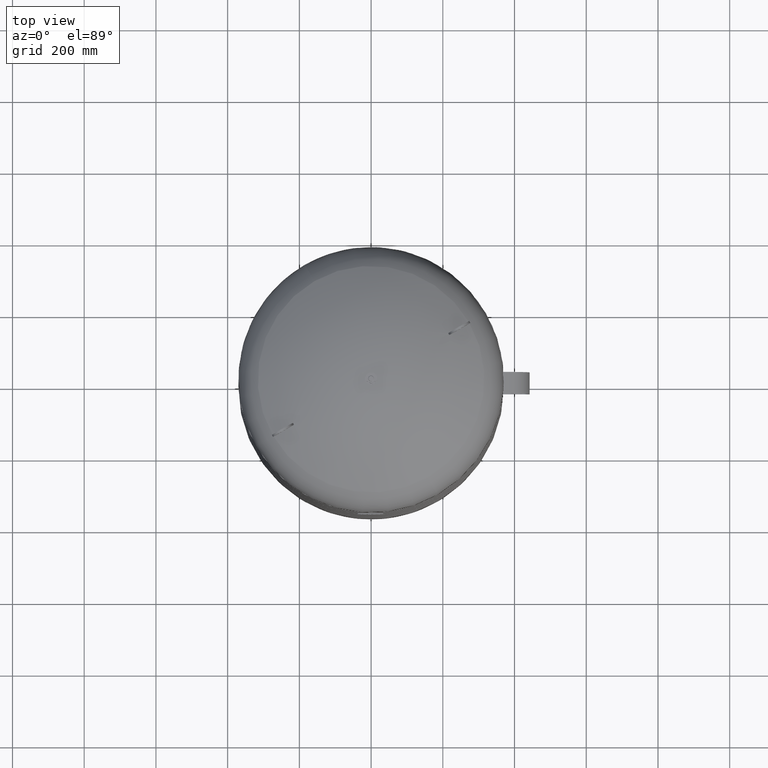
[diagram: clean part render]
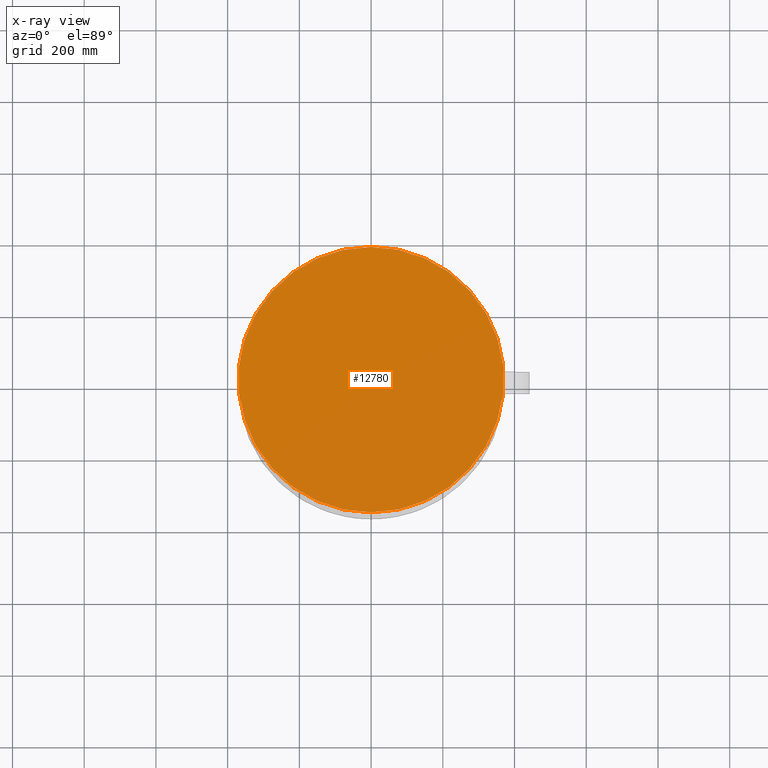
[diagram: x-ray — body ghosted, one internal face saturated and labeled with its STEP entity id]
A machine part, top view, then the same camera in x-ray: the body is ghosted and one INTERNAL B-rep face — a face not visible from any outside direction — is saturated and labeled: STEP entity #12780.
In plain terms, the highlighted planar face has unit normal (0, 0, -1).
Its self-contained STEP definition (entity closure, byte-faithful):
#12048=CARTESIAN_POINT('',(320.429399400242350,184.999999999999970,1500.0));
#12049=VERTEX_POINT('',#12048);
#12058=CARTESIAN_POINT('',(-320.429399400242350,-184.999999999999970,1500.0));
#12059=VERTEX_POINT('',#12058);
#12060=CARTESIAN_POINT('',(-2.685504E-015,-4.164022E-014,1500.0));
#12061=DIRECTION('',(-1.060575E-016,-6.123234E-017,-1.000000000000000));
#12062=DIRECTION('',(0.866025403784439,0.500000000000000,-1.224647E-016));
#12063=AXIS2_PLACEMENT_3D('',#12060,#12061,#12062);
#12064=CIRCLE('',#12063,370.0);
#12065=EDGE_CURVE('',#12059,#12049,#12064,.T.);
#12761=CARTESIAN_POINT('',(-2.685504E-015,-4.164022E-014,1500.0));
#12762=DIRECTION('',(-1.060575E-016,-6.123234E-017,-1.000000000000000));
#12763=DIRECTION('',(0.866025403784439,0.500000000000000,-1.224647E-016));
#12764=AXIS2_PLACEMENT_3D('',#12761,#12762,#12763);
#12765=CIRCLE('',#12764,370.0);
#12766=EDGE_CURVE('',#12049,#12059,#12765,.T.);
#12771=CARTESIAN_POINT('',(160.214699700121200,92.499999999999957,1500.0));
#12772=DIRECTION('',(0.0,0.0,-1.0));
#12773=DIRECTION('',(0.500000000000000,-0.866025403784439,0.0));
#12774=AXIS2_PLACEMENT_3D('',#12771,#12772,#12773);
#12775=PLANE('',#12774);
#12776=ORIENTED_EDGE('',*,*,#12766,.T.);
#12777=ORIENTED_EDGE('',*,*,#12065,.T.);
#12778=EDGE_LOOP('',(#12776,#12777));
#12779=FACE_OUTER_BOUND('',#12778,.T.);
#12780=ADVANCED_FACE('',(#12779),#12775,.T.);